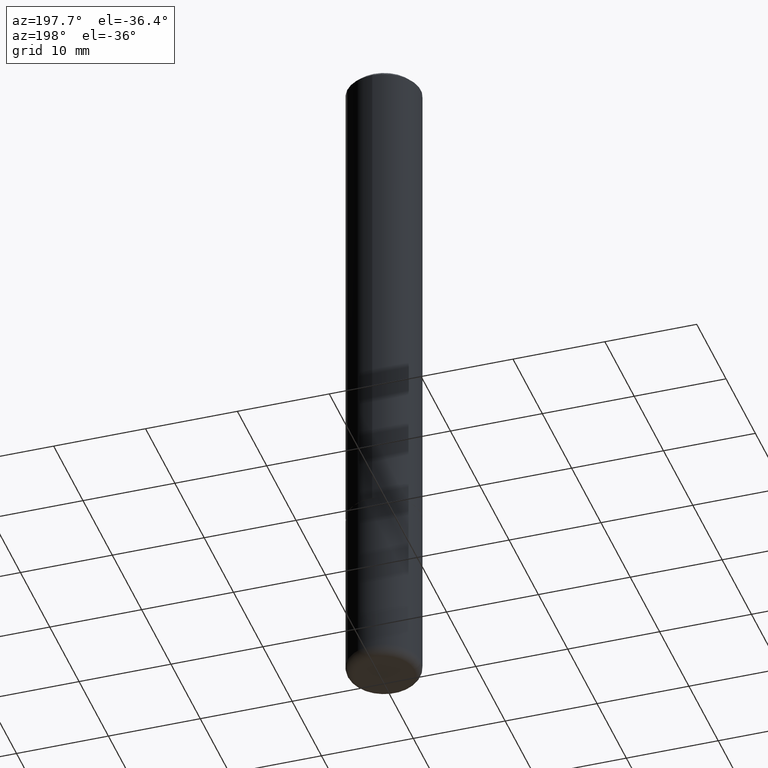
[diagram: clean part render]
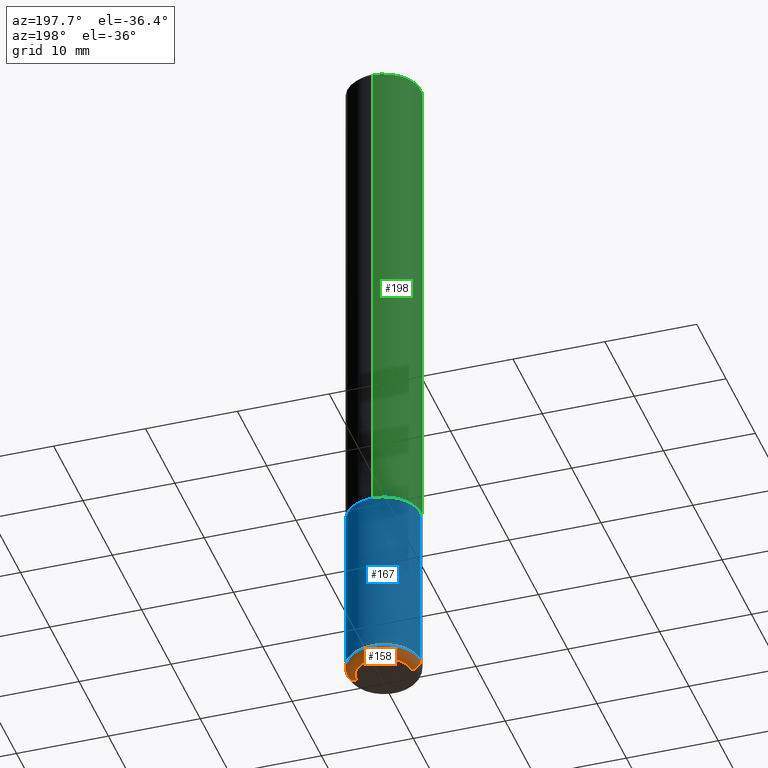
[diagram: same view with three faces highlighted in distinct colors, each labeled with its STEP entity id]
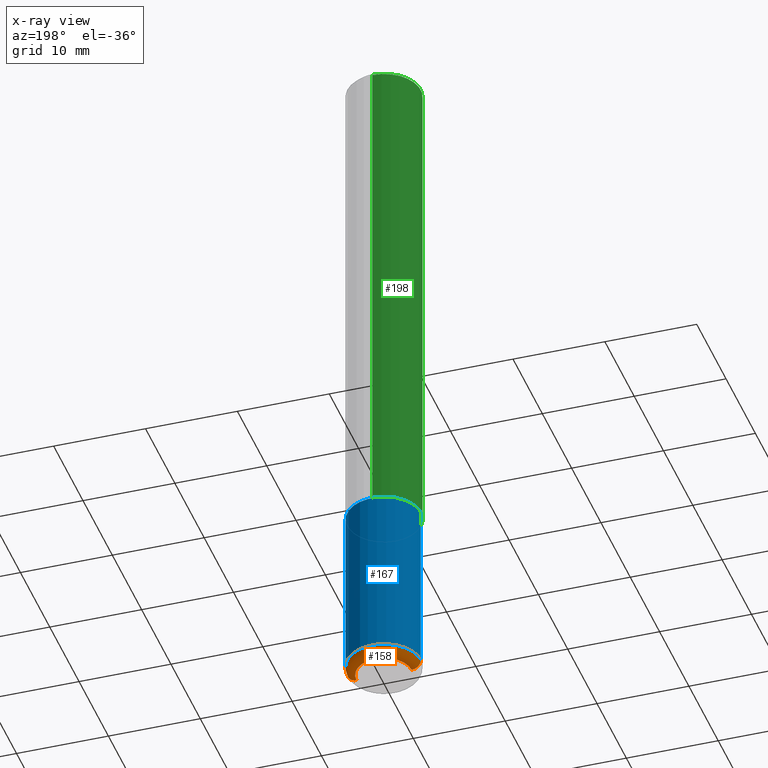
[diagram: x-ray of the same camera — body ghosted, the three highlighted faces saturated]
A machine part, auxiliary view with three faces highlighted in distinct colors.
The next image is the same camera in x-ray (body ghosted, the three faces saturated) — at least one of them is partly hidden behind the body in this view.
Their STEP definitions:

[orange] entity #158 — the highlighted toroidal blend (fillet) surface has major radius 2.9997 mm and minor (blend) radius 1.0008 mm.
#20 = EDGE_CURVE ( 'NONE', #115, #153, #245, .T. ) ;
#23 = AXIS2_PLACEMENT_3D ( 'NONE', #312, #380, #103 ) ;
#41 = FACE_OUTER_BOUND ( 'NONE', #139, .T. ) ;
#47 = CARTESIAN_POINT ( 'NONE',  ( -0.1180999999999999966, -9.332930761652941905E-15, -2.913399999999999768 ) ) ;
#68 = VERTEX_POINT ( 'NONE', #225 ) ;
#69 = CARTESIAN_POINT ( 'NONE',  ( 7.124628819939776708E-29, -1.017208173258561931E-14, -2.913399999999999768 ) ) ;
#74 = AXIS2_PLACEMENT_3D ( 'NONE', #172, #165, #81 ) ;
#81 = DIRECTION ( 'NONE',  ( 1.000000000000000000, -6.982962677686271444E-15, 4.883557194083114583E-29 ) ) ;
#86 = EDGE_CURVE ( 'NONE', #68, #326, #241, .T. ) ;
#103 = DIRECTION ( 'NONE',  ( 1.000000000000000000, -6.982962677686273021E-15, 0.000000000000000000 ) ) ;
#104 = CARTESIAN_POINT ( 'NONE',  ( -0.1575000000000000289, -9.052976923763463288E-15, -2.913399999999999768 ) ) ;
#115 = VERTEX_POINT ( 'NONE', #289 ) ;
#121 = TOROIDAL_SURFACE ( 'NONE', #74, 0.1180999999999999966, 0.03940000000000005997 ) ;
#123 = AXIS2_PLACEMENT_3D ( 'NONE', #328, #299, #203 ) ;
#125 = DIRECTION ( 'NONE',  ( 1.000000000000000000, -6.982962677686261977E-15, 0.000000000000000000 ) ) ;
#127 = ORIENTED_EDGE ( 'NONE', *, *, #243, .T. ) ;
#139 = EDGE_LOOP ( 'NONE', ( #127, #284, #302, #409 ) ) ;
#153 = VERTEX_POINT ( 'NONE', #104 ) ;
#158 = ADVANCED_FACE ( 'NONE', ( #41 ), #121, .T. ) ;
#165 = DIRECTION ( 'NONE',  ( -2.445468806185136597E-29, 3.491481338843145583E-15, 1.000000000000000000 ) ) ;
#172 = CARTESIAN_POINT ( 'NONE',  ( 7.124628819939776708E-29, -1.017208173258561931E-14, -2.913399999999999768 ) ) ;
#180 = CARTESIAN_POINT ( 'NONE',  ( 0.1575000000000000289, -1.127189835432120758E-14, -2.913399999999999768 ) ) ;
#185 = CIRCLE ( 'NONE', #23, 0.1180999999999999966 ) ;
#203 = DIRECTION ( 'NONE',  ( 1.000000000000000000, -6.982962677686267499E-15, 0.000000000000000000 ) ) ;
#225 = CARTESIAN_POINT ( 'NONE',  ( 0.1180999999999999966, -1.113433398957078679E-14, -2.952799999999999869 ) ) ;
#241 = CIRCLE ( 'NONE', #123, 0.03940000000000005997 ) ;
#243 = EDGE_CURVE ( 'NONE', #68, #115, #185, .T. ) ;
#245 = CIRCLE ( 'NONE', #384, 0.03940000000000005997 ) ;
#249 = AXIS2_PLACEMENT_3D ( 'NONE', #69, #276, #125 ) ;
#269 = EDGE_CURVE ( 'NONE', #326, #153, #279, .T. ) ;
#276 = DIRECTION ( 'NONE',  ( -2.445468806185136597E-29, 3.491481338843145583E-15, 1.000000000000000000 ) ) ;
#279 = CIRCLE ( 'NONE', #249, 0.1575000000000000011 ) ;
#284 = ORIENTED_EDGE ( 'NONE', *, *, #20, .T. ) ;
#289 = CARTESIAN_POINT ( 'NONE',  ( -0.1180999999999999966, -9.261736025083411415E-15, -2.952799999999999869 ) ) ;
#299 = DIRECTION ( 'NONE',  ( -6.982962677686266711E-15, -1.000000000000000000, 3.491481338843145583E-15 ) ) ;
#300 = DIRECTION ( 'NONE',  ( 7.105427357601001859E-15, 1.000000000000000000, -3.491481338843145583E-15 ) ) ;
#302 = ORIENTED_EDGE ( 'NONE', *, *, #269, .F. ) ;
#312 = CARTESIAN_POINT ( 'NONE',  ( 7.220980290903470182E-29, -1.030964609733603853E-14, -2.952799999999999869 ) ) ;
#326 = VERTEX_POINT ( 'NONE', #180 ) ;
#328 = CARTESIAN_POINT ( 'NONE',  ( 0.1180999999999999966, -1.099676962482036915E-14, -2.913399999999999768 ) ) ;
#380 = DIRECTION ( 'NONE',  ( -2.445468806185136597E-29, 3.491481338843145583E-15, 1.000000000000000000 ) ) ;
#384 = AXIS2_PLACEMENT_3D ( 'NONE', #47, #300, #393 ) ;
#393 = DIRECTION ( 'NONE',  ( -1.000000000000000000, 7.105427357601014480E-15, 0.000000000000000000 ) ) ;
#409 = ORIENTED_EDGE ( 'NONE', *, *, #86, .F. ) ;

[blue] entity #167 — the highlighted cylindrical surface (partial cylindrical patch) has radius 4.0005 mm, axis along (-0, 0, 1).
#13 = DIRECTION ( 'NONE',  ( -2.445468806185136597E-29, 3.491481338843145583E-15, 1.000000000000000000 ) ) ;
#14 = VERTEX_POINT ( 'NONE', #268 ) ;
#24 = ORIENTED_EDGE ( 'NONE', *, *, #96, .T. ) ;
#29 = CARTESIAN_POINT ( 'NONE',  ( -0.1575000000000000011, 1.119104808822157801E-15, -7.747322767151475583E-30 ) ) ;
#69 = CARTESIAN_POINT ( 'NONE',  ( 7.124628819939776708E-29, -1.017208173258561931E-14, -2.913399999999999768 ) ) ;
#80 = LINE ( 'NONE', #267, #129 ) ;
#84 = VERTEX_POINT ( 'NONE', #145 ) ;
#96 = EDGE_CURVE ( 'NONE', #153, #14, #391, .T. ) ;
#104 = CARTESIAN_POINT ( 'NONE',  ( -0.1575000000000000289, -9.052976923763463288E-15, -2.913399999999999768 ) ) ;
#125 = DIRECTION ( 'NONE',  ( 1.000000000000000000, -6.982962677686261977E-15, 0.000000000000000000 ) ) ;
#129 = VECTOR ( 'NONE', #238, 39.37007874015748143 ) ;
#145 = CARTESIAN_POINT ( 'NONE',  ( 0.1575000000000000011, -8.660270312866534114E-15, -2.165399999999999991 ) ) ;
#153 = VERTEX_POINT ( 'NONE', #104 ) ;
#167 = ADVANCED_FACE ( 'NONE', ( #262 ), #405, .T. ) ;
#180 = CARTESIAN_POINT ( 'NONE',  ( 0.1575000000000000289, -1.127189835432120758E-14, -2.913399999999999768 ) ) ;
#188 = ORIENTED_EDGE ( 'NONE', *, *, #197, .F. ) ;
#197 = EDGE_CURVE ( 'NONE', #84, #14, #261, .T. ) ;
#199 = DIRECTION ( 'NONE',  ( -2.445468806185136597E-29, 3.491481338843145583E-15, 1.000000000000000000 ) ) ;
#211 = AXIS2_PLACEMENT_3D ( 'NONE', #351, #199, #321 ) ;
#221 = ORIENTED_EDGE ( 'NONE', *, *, #352, .F. ) ;
#229 = DIRECTION ( 'NONE',  ( -2.445468806185136877E-29, 3.491481338843145188E-15, 1.000000000000000000 ) ) ;
#237 = ORIENTED_EDGE ( 'NONE', *, *, #269, .T. ) ;
#238 = DIRECTION ( 'NONE',  ( -2.445468806185136877E-29, 3.491481338843145188E-15, 1.000000000000000000 ) ) ;
#249 = AXIS2_PLACEMENT_3D ( 'NONE', #69, #276, #125 ) ;
#261 = CIRCLE ( 'NONE', #211, 0.1575000000000000011 ) ;
#262 = FACE_OUTER_BOUND ( 'NONE', #264, .T. ) ;
#264 = EDGE_LOOP ( 'NONE', ( #237, #24, #188, #221 ) ) ;
#267 = CARTESIAN_POINT ( 'NONE',  ( 0.1575000000000000011, -1.099816621735586889E-15, 7.679978421878598033E-30 ) ) ;
#268 = CARTESIAN_POINT ( 'NONE',  ( -0.1575000000000000011, -7.747162903036124976E-15, -2.165399999999999991 ) ) ;
#269 = EDGE_CURVE ( 'NONE', #326, #153, #279, .T. ) ;
#276 = DIRECTION ( 'NONE',  ( -2.445468806185136597E-29, 3.491481338843145583E-15, 1.000000000000000000 ) ) ;
#279 = CIRCLE ( 'NONE', #249, 0.1575000000000000011 ) ;
#292 = DIRECTION ( 'NONE',  ( 1.000000000000000000, -6.982962677686265922E-15, 4.876176775795935232E-29 ) ) ;
#307 = AXIS2_PLACEMENT_3D ( 'NONE', #354, #13, #292 ) ;
#321 = DIRECTION ( 'NONE',  ( 1.000000000000000000, -6.982962677686268288E-15, 0.000000000000000000 ) ) ;
#326 = VERTEX_POINT ( 'NONE', #180 ) ;
#341 = VECTOR ( 'NONE', #229, 39.37007874015748143 ) ;
#351 = CARTESIAN_POINT ( 'NONE',  ( 5.295418152913294345E-29, -7.560453691130947423E-15, -2.165399999999999991 ) ) ;
#352 = EDGE_CURVE ( 'NONE', #326, #84, #80, .T. ) ;
#354 = CARTESIAN_POINT ( 'NONE',  ( 0.000000000000000000, 0.000000000000000000, 0.000000000000000000 ) ) ;
#391 = LINE ( 'NONE', #29, #341 ) ;
#405 = CYLINDRICAL_SURFACE ( 'NONE', #307, 0.1575000000000000011 ) ;

[green] entity #198 — the highlighted cylindrical surface (partial cylindrical patch) has radius 4.0005 mm, axis along (-0, 0, 1).
#25 = DIRECTION ( 'NONE',  ( -2.444928043019069524E-29, 3.492255742475281487E-15, 1.000000000000000000 ) ) ;
#30 = CYLINDRICAL_SURFACE ( 'NONE', #60, 0.1575000000000001676 ) ;
#33 = CARTESIAN_POINT ( 'NONE',  ( -1.099816621735536007E-15, -0.1575000000000078559, -2.164399999999999213 ) ) ;
#37 = FACE_OUTER_BOUND ( 'NONE', #120, .T. ) ;
#53 = LINE ( 'NONE', #91, #160 ) ;
#59 = VERTEX_POINT ( 'NONE', #105 ) ;
#60 = AXIS2_PLACEMENT_3D ( 'NONE', #110, #333, #408 ) ;
#61 = CARTESIAN_POINT ( 'NONE',  ( 4.889856086038147210E-31, -6.984511484950574659E-17, -0.02000000000000003511 ) ) ;
#64 = LINE ( 'NONE', #223, #85 ) ;
#82 = ORIENTED_EDGE ( 'NONE', *, *, #226, .T. ) ;
#85 = VECTOR ( 'NONE', #191, 39.37007874015748143 ) ;
#91 = CARTESIAN_POINT ( 'NONE',  ( -1.099816621735587875E-15, -0.1575000000000001676, 5.500302794398574170E-16 ) ) ;
#95 = DIRECTION ( 'NONE',  ( -2.444928043019069804E-29, 3.492255742475281487E-15, 1.000000000000000000 ) ) ;
#99 = CIRCLE ( 'NONE', #294, 0.1575000000000000289 ) ;
#102 = CIRCLE ( 'NONE', #306, 0.1575000000000003064 ) ;
#105 = CARTESIAN_POINT ( 'NONE',  ( 1.099816621735587480E-15, 0.1574999999999999456, -0.02000000000000058328 ) ) ;
#110 = CARTESIAN_POINT ( 'NONE',  ( 0.000000000000000000, 0.000000000000000000, 0.000000000000000000 ) ) ;
#120 = EDGE_LOOP ( 'NONE', ( #166, #404, #82, #266 ) ) ;
#130 = CARTESIAN_POINT ( 'NONE',  ( 1.119104808822185805E-15, 0.1574999999999927569, -2.164400000000000102 ) ) ;
#147 = VERTEX_POINT ( 'NONE', #33 ) ;
#148 = CARTESIAN_POINT ( 'NONE',  ( -1.080528434649015779E-15, -0.1575000000000000844, -0.01999999999999948347 ) ) ;
#160 = VECTOR ( 'NONE', #25, 39.37007874015748143 ) ;
#161 = CARTESIAN_POINT ( 'NONE',  ( 5.291802256310474180E-29, -7.558638329013498276E-15, -2.164399999999999658 ) ) ;
#166 = ORIENTED_EDGE ( 'NONE', *, *, #303, .F. ) ;
#191 = DIRECTION ( 'NONE',  ( -2.444928043019069524E-29, 3.492255742475281487E-15, 1.000000000000000000 ) ) ;
#198 = ADVANCED_FACE ( 'NONE', ( #37 ), #30, .T. ) ;
#223 = CARTESIAN_POINT ( 'NONE',  ( 1.119104808822158787E-15, 0.1575000000000001676, -5.500302794398574170E-16 ) ) ;
#226 = EDGE_CURVE ( 'NONE', #147, #385, #53, .T. ) ;
#247 = DIRECTION ( 'NONE',  ( -2.444928043019069804E-29, 3.492255742475281487E-15, 1.000000000000000000 ) ) ;
#248 = VERTEX_POINT ( 'NONE', #130 ) ;
#266 = ORIENTED_EDGE ( 'NONE', *, *, #277, .F. ) ;
#272 = EDGE_CURVE ( 'NONE', #248, #147, #102, .T. ) ;
#277 = EDGE_CURVE ( 'NONE', #59, #385, #99, .T. ) ;
#294 = AXIS2_PLACEMENT_3D ( 'NONE', #61, #95, #415 ) ;
#303 = EDGE_CURVE ( 'NONE', #248, #59, #64, .T. ) ;
#306 = AXIS2_PLACEMENT_3D ( 'NONE', #161, #247, #381 ) ;
#333 = DIRECTION ( 'NONE',  ( -2.444928043019069804E-29, 3.492255742475281487E-15, 1.000000000000000000 ) ) ;
#381 = DIRECTION ( 'NONE',  ( -6.982962677686265133E-15, -1.000000000000000000, 3.469013325287946588E-15 ) ) ;
#385 = VERTEX_POINT ( 'NONE', #148 ) ;
#404 = ORIENTED_EDGE ( 'NONE', *, *, #272, .T. ) ;
#408 = DIRECTION ( 'NONE',  ( -6.982962677686265133E-15, -1.000000000000000000, 3.492255742475281487E-15 ) ) ;
#415 = DIRECTION ( 'NONE',  ( -6.982962677686264344E-15, -1.000000000000000000, 3.496114991891764787E-15 ) ) ;